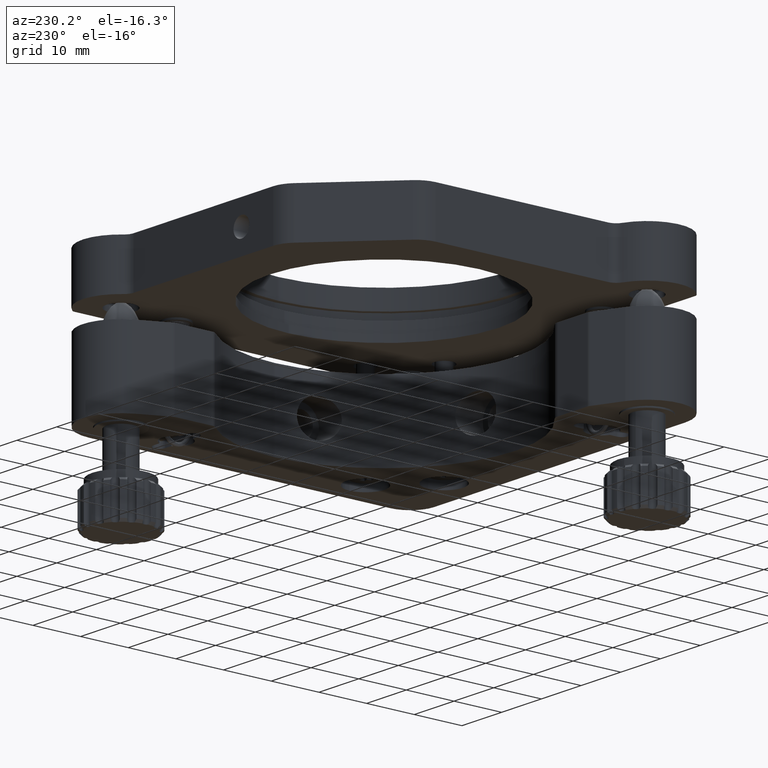
[diagram: clean part render]
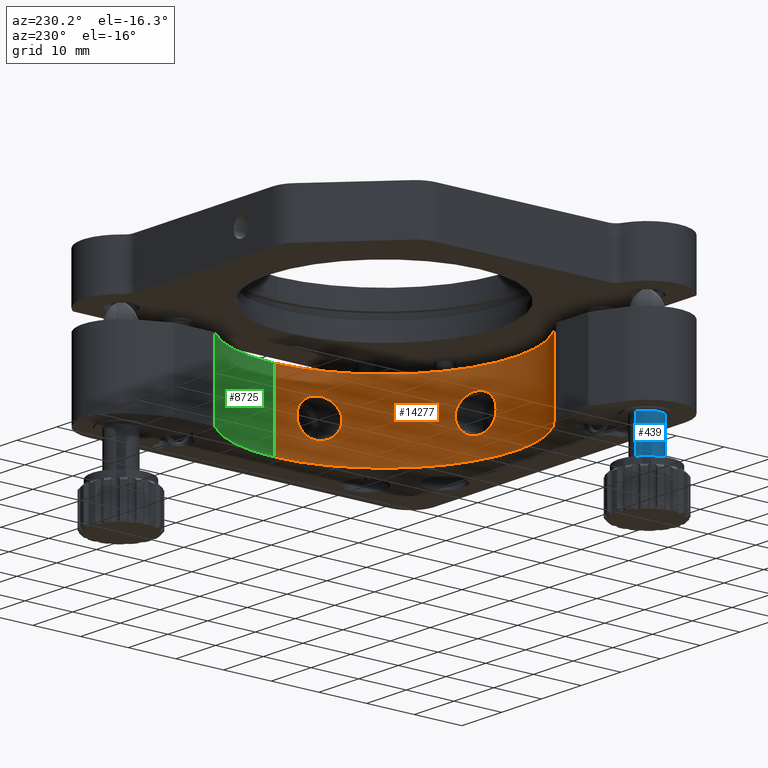
[diagram: same view with three faces highlighted in distinct colors, each labeled with its STEP entity id]
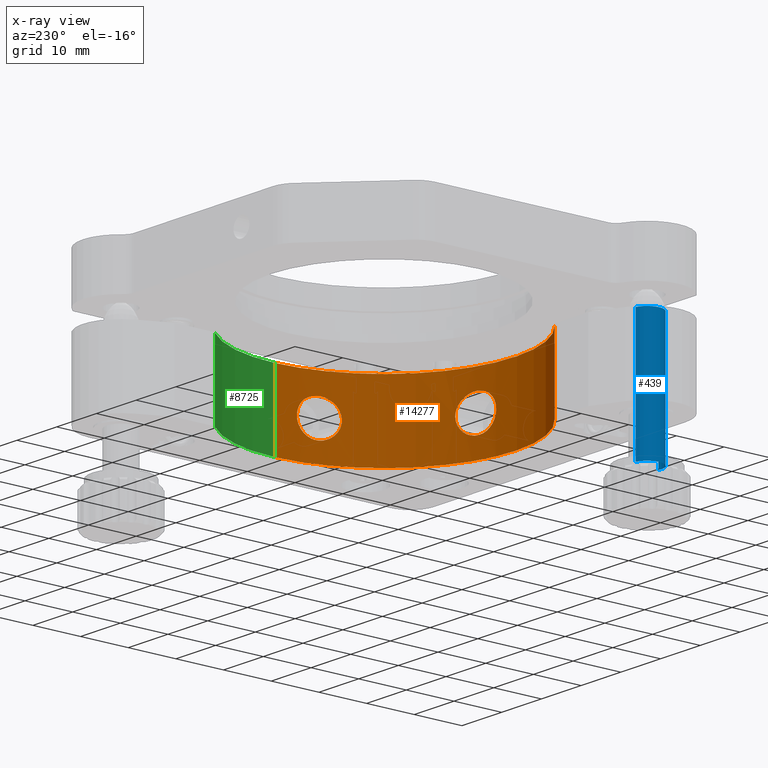
[diagram: x-ray of the same camera — body ghosted, the three highlighted faces saturated]
A machine part, auxiliary view with three faces highlighted in distinct colors.
The next image is the same camera in x-ray (body ghosted, the three faces saturated) — at least one of them is partly hidden behind the body in this view.
Their STEP definitions:

[orange] entity #14277 — the highlighted cylindrical surface (partial cylindrical patch) has radius 27.5 mm, axis along (0, 0, -1).
#127 = LINE ( 'NONE', #24927, #20570 ) ;
#245 = CARTESIAN_POINT ( 'NONE',  ( 11.72447375940483600, 13.75372775150772500, 36.66958947726605100 ) ) ;
#1021 = CARTESIAN_POINT ( 'NONE',  ( 11.61240398519504100, 13.21102739949589200, 37.16722676443497200 ) ) ;
#1133 = FACE_BOUND ( 'NONE', #18307, .T. ) ;
#1168 = AXIS2_PLACEMENT_3D ( 'NONE', #5977, #24690, #8650 ) ;
#1273 = CARTESIAN_POINT ( 'NONE',  ( -3.803981600072138000, -5.945244432638374700, 32.65918891084228900 ) ) ;
#1386 = CARTESIAN_POINT ( 'NONE',  ( -7.588334148211886900, -7.354276907216250200, 30.61669100113672900 ) ) ;
#1504 = CARTESIAN_POINT ( 'NONE',  ( -10.88459030306525800, -8.094655037398293700, 33.84464813031038900 ) ) ;
#1520 = CARTESIAN_POINT ( 'NONE',  ( -10.51350138551632600, -8.032372581302349000, 36.04736450454455400 ) ) ;
#1642 = CARTESIAN_POINT ( 'NONE',  ( -6.624647301913070100, -7.055041831068896500, 38.06918889963161200 ) ) ;
#1749 = CARTESIAN_POINT ( 'NONE',  ( -3.435912668439901300, -5.773112571599144300, 34.85538143289213100 ) ) ;
#2262 = B_SPLINE_CURVE_WITH_KNOTS ( 'NONE', 3,
 ( #9482, #25512, #14779, #33562, #17457, #1520, #20177, #4217, #22903, #6911, #25629, #9586, #28312, #12228, #31005, #14885, #33669, #17572, #1642, #20282, #4328, #23027, #7029, #25752, #9707, #28438, #12347, #31109, #15009, #33783, #17702, #1749, #20395, #4455 ),
 .UNSPECIFIED., .F., .F.,
 ( 4, 2, 2, 2, 2, 2, 2, 2, 2, 2, 2, 2, 2, 2, 2, 2, 4 ),
 ( 0.01202202049357796500, 0.01277320786518087000, 0.01352439523678377300, 0.01427558260838667800, 0.01502676997998958100, 0.01577795735159248600, 0.01652914472319539200, 0.01728033209479829700, 0.01803151946640119800, 0.01878270683800410300, 0.01953389420960700800, 0.02028508158120991300, 0.02103626895281281900, 0.02178745632441572000, 0.02253864369601862900, 0.02328983106762153000, 0.02404101843922443500 ),
 .UNSPECIFIED. ) ;
#2399 = CARTESIAN_POINT ( 'NONE',  ( 11.72573660731141300, 13.76014910145244300, 31.66072629155338400 ) ) ;
#2514 = CARTESIAN_POINT ( 'NONE',  ( 9.799756271762470700, 7.729543251172384700, 32.23317134279396600 ) ) ;
#2623 = CARTESIAN_POINT ( 'NONE',  ( 9.991173499210185900, 8.162414062818765400, 36.67629764958761700 ) ) ;
#2910 = CARTESIAN_POINT ( 'NONE',  ( 11.75527404419028500, 13.91412253825777200, 36.47856283163746100 ) ) ;
#3040 = CARTESIAN_POINT ( 'NONE',  ( 11.86094457971062400, 14.50557341350583900, 35.39353269183853000 ) ) ;
#3201 = CARTESIAN_POINT ( 'NONE',  ( 11.01972925181041200, 10.95503669957007300, 30.41161499869944200 ) ) ;
#3297 = CARTESIAN_POINT ( 'NONE',  ( 11.89353870448541700, 14.70544141034105000, 33.91775071106218300 ) ) ;
#3697 = CARTESIAN_POINT ( 'NONE',  ( 11.29400797949288000, 11.90109943675633500, 37.79828227043167700 ) ) ;
#3812 = CARTESIAN_POINT ( 'NONE',  ( 11.35597531785339600, 12.13571540134381400, 37.72906344125338800 ) ) ;
#3970 = CARTESIAN_POINT ( 'NONE',  ( -4.197515632329259300, -6.122088159024172200, 32.03815217676729100 ) ) ;
#4005 = CARTESIAN_POINT ( 'NONE',  ( 11.51934341006664800, 12.79841115329120900, 37.43654503579153900 ) ) ;
#4091 = CARTESIAN_POINT ( 'NONE',  ( -8.296871075275237900, -7.549778629702295500, 30.76797374120340900 ) ) ;
#4105 = VERTEX_POINT ( 'NONE', #7612 ) ;
#4208 = CARTESIAN_POINT ( 'NONE',  ( -10.91030118957225900, -8.098738360262769800, 34.35000000000002300 ) ) ;
#4217 = CARTESIAN_POINT ( 'NONE',  ( -10.10685648630852500, -7.958161508622769300, 36.68303294071114400 ) ) ;
#4263 = CARTESIAN_POINT ( 'NONE',  ( -33.47623285992027300, -1.546658215684167700, 42.20000000000001700 ) ) ;
#4328 = CARTESIAN_POINT ( 'NONE',  ( -5.927142914095679900, -6.813799025549786700, 37.89939486661355500 ) ) ;
#4455 = CARTESIAN_POINT ( 'NONE',  ( -3.410301189572261500, -5.760835237559196500, 34.35000000000002300 ) ) ;
#5001 = CARTESIAN_POINT ( 'NONE',  ( 10.94421950653771200, 10.71004924223826500, 30.41161499869943800 ) ) ;
#5229 = CARTESIAN_POINT ( 'NONE',  ( 11.86165834996676900, 14.50982663499327400, 32.94159190297495600 ) ) ;
#5237 = CARTESIAN_POINT ( 'NONE',  ( 9.652907997586329000, 7.410565311943852200, 32.91211091470822200 ) ) ;
#5337 = CARTESIAN_POINT ( 'NONE',  ( 10.21712238080075300, 8.701396209242926000, 37.16852925240799300 ) ) ;
#5535 = CARTESIAN_POINT ( 'NONE',  ( 11.01972925181041200, 10.95503669957007300, 30.41161499869944200 ) ) ;
#5672 = CARTESIAN_POINT ( 'NONE',  ( 11.87369919949249000, 14.58307274527599900, 33.18116313643526600 ) ) ;
#5785 = CARTESIAN_POINT ( 'NONE',  ( 11.46984561940345600, 12.58954838058802400, 30.77793811951558600 ) ) ;
#5847 = EDGE_CURVE ( 'NONE', #24687, #33180, #30978, .T. ) ;
#5977 = CARTESIAN_POINT ( 'NONE',  ( -15.26030118957226400, 19.05503669957007400, 42.20000000000001700 ) ) ;
#6602 = AXIS2_PLACEMENT_3D ( 'NONE', #22187, #24944, #16855 ) ;
#6662 = CARTESIAN_POINT ( 'NONE',  ( -4.695760516186863900, -6.335412870437867400, 31.51341167375026200 ) ) ;
#6780 = CARTESIAN_POINT ( 'NONE',  ( -8.976146265655215100, -7.718167099526931800, 31.05976674726511900 ) ) ;
#6821 = CARTESIAN_POINT ( 'NONE',  ( -15.26030118957226400, 19.05503669957007400, 26.40000000000001300 ) ) ;
#6911 = CARTESIAN_POINT ( 'NONE',  ( -9.588101201450964300, -7.854246537737636500, 37.21884963167717300 ) ) ;
#7029 = CARTESIAN_POINT ( 'NONE',  ( -5.280383662552973000, -6.571065059261997900, 37.60354064872112900 ) ) ;
#7406 = EDGE_CURVE ( 'NONE', #16631, #27137, #23154, .T. ) ;
#7612 = CARTESIAN_POINT ( 'NONE',  ( -10.91030118957225900, -8.098738360262769800, 34.35000000000002300 ) ) ;
#7775 = CARTESIAN_POINT ( 'NONE',  ( 10.86650390890866000, 10.47006229524177600, 30.43538350453967900 ) ) ;
#7896 = CARTESIAN_POINT ( 'NONE',  ( 9.568483963468096900, 7.231979425746512600, 33.64632829567295900 ) ) ;
#8016 = CARTESIAN_POINT ( 'NONE',  ( 10.46034216682837200, 9.320829509336286700, 37.54534050057710500 ) ) ;
#8426 = ORIENTED_EDGE ( 'NONE', *, *, #5847, .T. ) ;
#8546 = EDGE_CURVE ( 'NONE', #33180, #31280, #20618, .T. ) ;
#8650 = DIRECTION ( 'NONE',  ( 1.000000000000000000, 0.0000000000000000000, 0.0000000000000000000 ) ) ;
#9122 = CARTESIAN_POINT ( 'NONE',  ( -3.410301189572261500, -5.760835237559196500, 34.35000000000002300 ) ) ;
#9345 = CARTESIAN_POINT ( 'NONE',  ( -5.282498649634758800, -6.571892743360689500, 31.09520358812605400 ) ) ;
#9468 = CARTESIAN_POINT ( 'NONE',  ( -9.584495610804475900, -7.853498286132510700, 31.47790884833033000 ) ) ;
#9482 = CARTESIAN_POINT ( 'NONE',  ( -10.91030118957225900, -8.098738360262769800, 34.35000000000002300 ) ) ;
#9503 = DIRECTION ( 'NONE',  ( 1.000000000000000000, 0.0000000000000000000, 0.0000000000000000000 ) ) ;
#9533 = ORIENTED_EDGE ( 'NONE', *, *, #8546, .T. ) ;
#9586 = CARTESIAN_POINT ( 'NONE',  ( -8.975492461596749300, -7.718016572866978300, 37.64062496048228500 ) ) ;
#9707 = CARTESIAN_POINT ( 'NONE',  ( -4.694204628835114700, -6.334761315163842000, 37.18518135401954800 ) ) ;
#10470 = CARTESIAN_POINT ( 'NONE',  ( 10.62482563897482600, 9.767031868782268600, 30.59658611018073100 ) ) ;
#10578 = CARTESIAN_POINT ( 'NONE',  ( 9.555378303744706900, 7.204633689997925700, 34.40845422026011800 ) ) ;
#10661 = CARTESIAN_POINT ( 'NONE',  ( 11.16768732024313100, 11.43507898876267100, 30.41161499869943800 ) ) ;
#10685 = CARTESIAN_POINT ( 'NONE',  ( 10.70577447990825300, 9.995495485857762900, 37.79478070973728200 ) ) ;
#10780 = CARTESIAN_POINT ( 'NONE',  ( 11.88958530197991300, 14.68055361946742500, 33.66719100786030300 ) ) ;
#11216 = EDGE_CURVE ( 'NONE', #28753, #31280, #127, .T. ) ;
#11910 = ORIENTED_EDGE ( 'NONE', *, *, #7406, .F. ) ;
#11987 = CARTESIAN_POINT ( 'NONE',  ( -5.929894274128071400, -6.814792916137585100, 30.79964430164985200 ) ) ;
#12104 = CARTESIAN_POINT ( 'NONE',  ( -10.10706171999812500, -7.958196702379134500, 32.01737372009112900 ) ) ;
#12228 = CARTESIAN_POINT ( 'NONE',  ( -8.296460718585805700, -7.549685936160670100, 37.93227733946974900 ) ) ;
#12347 = CARTESIAN_POINT ( 'NONE',  ( -4.198928514336397900, -6.122708018317430500, 36.66360396754392100 ) ) ;
#13084 = CARTESIAN_POINT ( 'NONE',  ( 10.37842961275941700, 9.107561249898832800, 30.88946937042000600 ) ) ;
#13197 = CARTESIAN_POINT ( 'NONE',  ( 9.615844566933704500, 7.331959097424777900, 35.16184810204340700 ) ) ;
#13306 = CARTESIAN_POINT ( 'NONE',  ( 10.94518754357597600, 10.71318998826714400, 37.91161499869943400 ) ) ;
#13765 = ORIENTED_EDGE ( 'NONE', *, *, #30686, .F. ) ;
#13856 = CARTESIAN_POINT ( 'NONE',  ( 11.65448911263465700, 13.40914140831975500, 31.31548253670515800 ) ) ;
#14169 = DIRECTION ( 'NONE',  ( 0.0000000000000000000, 0.0000000000000000000, -1.000000000000000000 ) ) ;
#14277 = ADVANCED_FACE ( 'NONE', ( #29596, #1133, #22442 ), #19034, .F. ) ;
#14423 = EDGE_CURVE ( 'NONE', #27238, #4105, #34395, .T. ) ;
#14518 = CARTESIAN_POINT ( 'NONE',  ( -3.435891815567631500, -5.773100173432791100, 33.84641996739124200 ) ) ;
#14633 = CARTESIAN_POINT ( 'NONE',  ( -6.627380265971859300, -7.055944915706196400, 30.63042469955398100 ) ) ;
#14764 = CARTESIAN_POINT ( 'NONE',  ( -10.51248516921498900, -8.032196826310093100, 32.65041530017457900 ) ) ;
#14779 = CARTESIAN_POINT ( 'NONE',  ( -10.88542618452068400, -8.094790224470534300, 34.85027620356378000 ) ) ;
#14885 = CARTESIAN_POINT ( 'NONE',  ( -7.586496744287931200, -7.353744505546990800, 38.08352736354999700 ) ) ;
#15009 = CARTESIAN_POINT ( 'NONE',  ( -3.804181570000149600, -5.945333658411745300, 36.04097460590156700 ) ) ;
#15204 = ORIENTED_EDGE ( 'NONE', *, *, #17897, .F. ) ;
#15310 = CARTESIAN_POINT ( 'NONE',  ( 11.75662857346820000, 13.92128929335893200, 31.85404066536974500 ) ) ;
#15428 = CARTESIAN_POINT ( 'NONE',  ( 11.30138877346915100, 11.91782598134002700, 30.50523325832560700 ) ) ;
#15769 = CARTESIAN_POINT ( 'NONE',  ( 10.13981757688420000, 8.513701361918659700, 31.30478367684669300 ) ) ;
#15881 = CARTESIAN_POINT ( 'NONE',  ( 9.742109369595056000, 7.603348403030256700, 35.86202167918910500 ) ) ;
#16631 = VERTEX_POINT ( 'NONE', #30676 ) ;
#16641 = VECTOR ( 'NONE', #30620, 1000.000000000000000 ) ;
#16855 = DIRECTION ( 'NONE',  ( 1.000000000000000000, 0.0000000000000000000, 0.0000000000000000000 ) ) ;
#16948 = CARTESIAN_POINT ( 'NONE',  ( 12.23969881042774000, 19.05503669957007400, 42.20000000000001700 ) ) ;
#17085 = CARTESIAN_POINT ( 'NONE',  ( -3.410301189572261000, -5.760835237559200900, 34.09572300008578300 ) ) ;
#17206 = CARTESIAN_POINT ( 'NONE',  ( -3.610919589854588300, -5.855869016007214400, 33.11484268788683500 ) ) ;
#17322 = CARTESIAN_POINT ( 'NONE',  ( -7.343784842337957900, -7.282045462162541200, 30.59681185288801300 ) ) ;
#17445 = CARTESIAN_POINT ( 'NONE',  ( -10.78380068680357900, -8.078218734001035600, 33.35202138968532600 ) ) ;
#17457 = CARTESIAN_POINT ( 'NONE',  ( -10.70913804942303200, -8.065928696245501700, 35.58723674271804100 ) ) ;
#17572 = CARTESIAN_POINT ( 'NONE',  ( -6.861504946111075800, -7.132244659785433400, 38.09581513811880900 ) ) ;
#17702 = CARTESIAN_POINT ( 'NONE',  ( -3.537517630273692600, -5.821247302506813000, 35.35095930563164800 ) ) ;
#17897 = EDGE_CURVE ( 'NONE', #27137, #16631, #25787, .T. ) ;
#18307 = EDGE_LOOP ( 'NONE', ( #31676, #18680 ) ) ;
#18455 = CARTESIAN_POINT ( 'NONE',  ( 9.923888498324723500, 8.008323542294711200, 31.82932331702694700 ) ) ;
#18573 = CARTESIAN_POINT ( 'NONE',  ( 9.921844291627085300, 8.003666214215643400, 36.48806534734014700 ) ) ;
#18680 = ORIENTED_EDGE ( 'NONE', *, *, #27970, .F. ) ;
#18855 = CARTESIAN_POINT ( 'NONE',  ( 11.82785857558659100, 14.31254908162941900, 35.85011811210880200 ) ) ;
#18999 = CARTESIAN_POINT ( 'NONE',  ( 11.88941078184465800, 14.67946232027613000, 34.66450686953299300 ) ) ;
#19034 = CYLINDRICAL_SURFACE ( 'NONE', #6602, 27.50000000000000400 ) ;
#19170 = CARTESIAN_POINT ( 'NONE',  ( 11.46827374871909700, 12.58306141253679800, 37.54838722621524700 ) ) ;
#19754 = CARTESIAN_POINT ( 'NONE',  ( 11.16218723768284500, 11.42861820081578000, 37.88936285895749700 ) ) ;
#19925 = CARTESIAN_POINT ( 'NONE',  ( -3.921462633119292100, -5.998976564206335700, 32.44404527303840500 ) ) ;
#20016 = ORIENTED_EDGE ( 'NONE', *, *, #11216, .F. ) ;
#20045 = CARTESIAN_POINT ( 'NONE',  ( -8.063606596707417800, -7.487730872827855300, 30.70241893357864200 ) ) ;
#20166 = CARTESIAN_POINT ( 'NONE',  ( -10.91030118957226200, -8.098738360262775200, 34.09927603661585500 ) ) ;
#20177 = CARTESIAN_POINT ( 'NONE',  ( -10.39094581177926500, -8.010813517067653300, 36.27045987830331300 ) ) ;
#20282 = CARTESIAN_POINT ( 'NONE',  ( -6.158155797841460300, -6.896103317997000400, 37.97146320875140900 ) ) ;
#20395 = CARTESIAN_POINT ( 'NONE',  ( -3.410301189572262400, -5.760835237559201800, 34.60421307019292000 ) ) ;
#20570 = VECTOR ( 'NONE', #14169, 1000.000000000000000 ) ;
#20618 = CIRCLE ( 'NONE', #26404, 27.50000000000000400 ) ;
#20713 = CARTESIAN_POINT ( 'NONE',  ( 11.89340742239832800, 14.70462191608151600, 34.41777118050426800 ) ) ;
#21175 = CARTESIAN_POINT ( 'NONE',  ( 9.743761495506220200, 7.606955849880257900, 32.45430937358364100 ) ) ;
#21299 = CARTESIAN_POINT ( 'NONE',  ( 10.13947726131923600, 8.512861567723916800, 37.01786265101638700 ) ) ;
#21330 = CARTESIAN_POINT ( 'NONE',  ( -33.47623285992027300, -1.546658215684167700, 26.40000000000001300 ) ) ;
#21678 = CARTESIAN_POINT ( 'NONE',  ( 11.01972925181041400, 10.95503669957007300, 37.91161499869944200 ) ) ;
#21874 = CARTESIAN_POINT ( 'NONE',  ( 11.52159151106701400, 12.80807748566540000, 30.89220401125737700 ) ) ;
#21920 = CARTESIAN_POINT ( 'NONE',  ( 12.23969881042774000, 19.05503669957007400, 42.20000000000001700 ) ) ;
#22187 = CARTESIAN_POINT ( 'NONE',  ( -15.26030118957226400, 19.05503669957007400, 42.20000000000001700 ) ) ;
#22442 = FACE_OUTER_BOUND ( 'NONE', #25808, .T. ) ;
#22659 = CARTESIAN_POINT ( 'NONE',  ( -4.354005467935214000, -6.190500780129819500, 31.85102053107494800 ) ) ;
#22773 = CARTESIAN_POINT ( 'NONE',  ( -8.753928554097759800, -7.665230379741340800, 30.94661124071452500 ) ) ;
#22903 = CARTESIAN_POINT ( 'NONE',  ( -9.946125077214519500, -7.927233577368067300, 36.87263678992719200 ) ) ;
#23027 = CARTESIAN_POINT ( 'NONE',  ( -5.489288764262701300, -6.651612661106645100, 37.71550155637760300 ) ) ;
#23154 = B_SPLINE_CURVE_WITH_KNOTS ( 'NONE', 3,
 ( #21678, #29766, #19754, #3697, #3812, #19170, #4005, #1021, #23579, #245, #2910, #32279, #18855, #3040, #33111, #18999, #20713, #3297, #10780, #5672, #5229, #31859, #34340, #15310, #2399, #13856, #29879, #21874, #5785, #15428, #10661, #5535 ),
 .UNSPECIFIED., .F., .F.,
 ( 4, 2, 2, 2, 2, 2, 2, 2, 2, 2, 2, 2, 2, 2, 2, 4 ),
 ( 0.01212766341529378400, 0.01287027685505934800, 0.01361289029482491200, 0.01435550373459047600, 0.01509811717435604100, 0.01584073061412160500, 0.01658334405388716900, 0.01732595749365273300, 0.01806857093341829700, 0.01881118437318386000, 0.01955379781294942400, 0.02029641125271498800, 0.02103902469248055200, 0.02178163813224611600, 0.02252425157201168000, 0.02400947845154280000 ),
 .UNSPECIFIED. ) ;
#23579 = CARTESIAN_POINT ( 'NONE',  ( 11.65327488463974100, 13.40336628213144900, 37.01263057994273700 ) ) ;
#23939 = CARTESIAN_POINT ( 'NONE',  ( 9.617330757021635500, 7.335109899211621700, 33.15027637561960500 ) ) ;
#24053 = CARTESIAN_POINT ( 'NONE',  ( 10.37716237299239600, 9.104285709553808600, 37.43195895029710800 ) ) ;
#24350 = CARTESIAN_POINT ( 'NONE',  ( 12.23969881042774000, 19.05503669957007400, 26.40000000000001300 ) ) ;
#24687 = VERTEX_POINT ( 'NONE', #21920 ) ;
#24690 = DIRECTION ( 'NONE',  ( 0.0000000000000000000, 0.0000000000000000000, -1.000000000000000000 ) ) ;
#24927 = CARTESIAN_POINT ( 'NONE',  ( -33.47623285992027300, -1.546658215684167700, 42.20000000000001700 ) ) ;
#24944 = DIRECTION ( 'NONE',  ( 0.0000000000000000000, 0.0000000000000000000, -1.000000000000000000 ) ) ;
#25201 = CIRCLE ( 'NONE', #1168, 27.50000000000000400 ) ;
#25382 = CARTESIAN_POINT ( 'NONE',  ( -4.883758571540549400, -6.413049594753386100, 31.36048569663421800 ) ) ;
#25496 = CARTESIAN_POINT ( 'NONE',  ( -9.390126877214427700, -7.811970917920702600, 31.32497014883022500 ) ) ;
#25512 = CARTESIAN_POINT ( 'NONE',  ( -10.91030118957226100, -8.098738360262771600, 34.60066092695889500 ) ) ;
#25541 = DIRECTION ( 'NONE',  ( 0.0000000000000000000, 0.0000000000000000000, -1.000000000000000000 ) ) ;
#25629 = CARTESIAN_POINT ( 'NONE',  ( -9.390195162789378700, -7.811988768656156900, 37.37501319877993900 ) ) ;
#25752 = CARTESIAN_POINT ( 'NONE',  ( -4.882568266474195600, -6.412560450082057000, 37.33856979043658700 ) ) ;
#25787 = B_SPLINE_CURVE_WITH_KNOTS ( 'NONE', 3,
 ( #34448, #5001, #7775, #26494, #10470, #29206, #13084, #31868, #15769, #34560, #18455, #2514, #21175, #5237, #23939, #7896, #26591, #10578, #29324, #13197, #31981, #15881, #34671, #18573, #2623, #21299, #5337, #24053, #8016, #26704, #10685, #29429, #13306, #32096 ),
 .UNSPECIFIED., .F., .F.,
 ( 4, 2, 2, 2, 2, 2, 2, 2, 2, 2, 2, 2, 2, 2, 2, 2, 4 ),
 ( 0.0000000000000000000, 0.0007579789634558624800, 0.001515957926911725000, 0.002273936890367587700, 0.003031915853823449900, 0.003789894817279313100, 0.004547873780735173600, 0.005305852744191035000, 0.006063831707646896400, 0.006821810671102757800, 0.007579789634558617400, 0.008337768598014478800, 0.009095747561470340200, 0.009853726524926201600, 0.01061170548838206300, 0.01136968445183792400, 0.01212766341529378400 ),
 .UNSPECIFIED. ) ;
#25808 = EDGE_LOOP ( 'NONE', ( #13765, #8426, #9533, #20016 ) ) ;
#26404 = AXIS2_PLACEMENT_3D ( 'NONE', #6821, #25541, #9503 ) ;
#26494 = CARTESIAN_POINT ( 'NONE',  ( 10.70712546060949000, 9.999404013533640200, 30.52750334792418500 ) ) ;
#26591 = CARTESIAN_POINT ( 'NONE',  ( 9.555767849851122300, 7.205449464780793200, 33.90267889806111900 ) ) ;
#26704 = CARTESIAN_POINT ( 'NONE',  ( 10.62445584595177200, 9.766030428636439000, 37.72623215911789200 ) ) ;
#26893 = EDGE_LOOP ( 'NONE', ( #15204, #11910 ) ) ;
#27137 = VERTEX_POINT ( 'NONE', #3201 ) ;
#27238 = VERTEX_POINT ( 'NONE', #27657 ) ;
#27657 = CARTESIAN_POINT ( 'NONE',  ( -3.410301189572261500, -5.760835237559196500, 34.35000000000002300 ) ) ;
#27970 = EDGE_CURVE ( 'NONE', #4105, #27238, #2262, .T. ) ;
#28067 = CARTESIAN_POINT ( 'NONE',  ( -5.491733129298507900, -6.652543031032986500, 30.98327943086829700 ) ) ;
#28175 = CARTESIAN_POINT ( 'NONE',  ( -9.945967722796433800, -7.927214575085606000, 31.82696846212586900 ) ) ;
#28312 = CARTESIAN_POINT ( 'NONE',  ( -8.756732779296537900, -7.665927702232052000, 37.75220158009150900 ) ) ;
#28438 = CARTESIAN_POINT ( 'NONE',  ( -4.353494985694865700, -6.190276096885216200, 36.84834434995158900 ) ) ;
#28753 = VERTEX_POINT ( 'NONE', #4263 ) ;
#29206 = CARTESIAN_POINT ( 'NONE',  ( 10.45992491004608900, 9.319699311928248500, 30.77835354227474700 ) ) ;
#29324 = CARTESIAN_POINT ( 'NONE',  ( 9.567586140060452500, 7.230097506833650400, 34.66359665434842400 ) ) ;
#29429 = CARTESIAN_POINT ( 'NONE',  ( 10.86602915719345900, 10.46858019599374000, 37.88773529933412500 ) ) ;
#29596 = FACE_BOUND ( 'NONE', #26893, .T. ) ;
#29766 = CARTESIAN_POINT ( 'NONE',  ( 11.09275987274690100, 11.19198076640513600, 37.91161499869942700 ) ) ;
#29879 = CARTESIAN_POINT ( 'NONE',  ( 11.61404845848513800, 13.21863309437785000, 31.16179171704550700 ) ) ;
#30620 = DIRECTION ( 'NONE',  ( 0.0000000000000000000, 0.0000000000000000000, -1.000000000000000000 ) ) ;
#30676 = CARTESIAN_POINT ( 'NONE',  ( 11.01972925181041400, 10.95503669957007300, 37.91161499869944200 ) ) ;
#30686 = EDGE_CURVE ( 'NONE', #24687, #28753, #25201, .T. ) ;
#30756 = CARTESIAN_POINT ( 'NONE',  ( -6.161003729916647100, -6.897101368942466900, 30.72775625977143900 ) ) ;
#30868 = CARTESIAN_POINT ( 'NONE',  ( -10.38969051970639500, -8.010583699038010200, 32.42760890040214200 ) ) ;
#30978 = LINE ( 'NONE', #16948, #16641 ) ;
#31005 = CARTESIAN_POINT ( 'NONE',  ( -8.062056762365143600, -7.487312039198156900, 37.99797287711587000 ) ) ;
#31109 = CARTESIAN_POINT ( 'NONE',  ( -3.923145399913837500, -5.999737159728302200, 36.25874666568130800 ) ) ;
#31280 = VERTEX_POINT ( 'NONE', #21330 ) ;
#31676 = ORIENTED_EDGE ( 'NONE', *, *, #14423, .F. ) ;
#31859 = CARTESIAN_POINT ( 'NONE',  ( 11.82854016028686000, 14.31644005945762600, 32.48055720932279700 ) ) ;
#31868 = CARTESIAN_POINT ( 'NONE',  ( 10.21878559970313200, 8.705499446107223700, 31.15168398701677100 ) ) ;
#31981 = CARTESIAN_POINT ( 'NONE',  ( 9.651256081370275900, 7.407032022939036500, 35.40131662845564600 ) ) ;
#32096 = CARTESIAN_POINT ( 'NONE',  ( 11.01972925181041400, 10.95503669957007300, 37.91161499869944200 ) ) ;
#32279 = CARTESIAN_POINT ( 'NONE',  ( 11.80709715827059400, 14.19435256004202700, 36.06720388861592100 ) ) ;
#33111 = CARTESIAN_POINT ( 'NONE',  ( 11.87328348966699700, 14.58054301489631600, 35.15153943796319400 ) ) ;
#33180 = VERTEX_POINT ( 'NONE', #24350 ) ;
#33321 = CARTESIAN_POINT ( 'NONE',  ( -3.535506039649727800, -5.820296792083180300, 33.35718674690864600 ) ) ;
#33436 = CARTESIAN_POINT ( 'NONE',  ( -6.863891258787682600, -7.133003092367472300, 30.60403835158628300 ) ) ;
#33551 = CARTESIAN_POINT ( 'NONE',  ( -10.70937970985397700, -8.065971591682046700, 33.11316240268620000 ) ) ;
#33562 = CARTESIAN_POINT ( 'NONE',  ( -10.78413219659044500, -8.078273906794446900, 35.34733712475534200 ) ) ;
#33669 = CARTESIAN_POINT ( 'NONE',  ( -7.342737966239999600, -7.281737513263254700, 38.10328217252388300 ) ) ;
#33783 = CARTESIAN_POINT ( 'NONE',  ( -3.612147351060830400, -5.856440714035334900, 35.58836115771507000 ) ) ;
#34340 = CARTESIAN_POINT ( 'NONE',  ( 11.80781997527484100, 14.19842544716396800, 32.26319903111424700 ) ) ;
#34395 = B_SPLINE_CURVE_WITH_KNOTS ( 'NONE', 3,
 ( #9122, #17085, #14518, #33321, #17206, #1273, #19925, #3970, #22659, #6662, #25382, #9345, #28067, #11987, #30756, #14633, #33436, #17322, #1386, #20045, #4091, #22773, #6780, #25496, #9468, #28175, #12104, #30868, #14764, #33551, #17445, #1504, #20166, #4208 ),
 .UNSPECIFIED., .F., .F.,
 ( 4, 2, 2, 2, 2, 2, 2, 2, 2, 2, 2, 2, 2, 2, 2, 2, 4 ),
 ( 0.0000000000000000000, 0.0007513762808486233300, 0.001502752561697246700, 0.002254128842545869700, 0.003005505123394493300, 0.003756881404243116500, 0.004508257685091739300, 0.005259633965940363000, 0.006011010246788986600, 0.006762386527637609400, 0.007513762808486235600, 0.008265139089334861900, 0.009016515370183482100, 0.009767891651032102300, 0.01051926793188072200, 0.01127064421272934400, 0.01202202049357796500 ),
 .UNSPECIFIED. ) ;
#34448 = CARTESIAN_POINT ( 'NONE',  ( 11.01972925181041200, 10.95503669957007300, 30.41161499869944200 ) ) ;
#34560 = CARTESIAN_POINT ( 'NONE',  ( 9.992397532991535800, 8.165271262319516100, 31.64391520771825500 ) ) ;
#34671 = CARTESIAN_POINT ( 'NONE',  ( 9.797771732827683900, 7.725154879509531700, 36.08276631885986800 ) ) ;

[blue] entity #439 — the highlighted cylindrical surface (edge-blend (fillet) strip) has radius 3 mm, axis along (-0, -0, -1).
#439 = ADVANCED_FACE ( 'NONE', ( #7404 ), #17341, .T. ) ;
#2683 = EDGE_CURVE ( 'NONE', #21797, #22487, #3343, .T. ) ;
#3343 = CIRCLE ( 'NONE', #4146, 2.999999999999992500 ) ;
#4146 = AXIS2_PLACEMENT_3D ( 'NONE', #32273, #32399, #16287 ) ;
#4592 = CARTESIAN_POINT ( 'NONE',  ( -44.70703756569423600, -13.97297399674197000, 17.60000000000001900 ) ) ;
#5298 = VERTEX_POINT ( 'NONE', #21237 ) ;
#7110 = VECTOR ( 'NONE', #18768, 1000.000000000000000 ) ;
#7404 = FACE_OUTER_BOUND ( 'NONE', #9199, .T. ) ;
#9199 = EDGE_LOOP ( 'NONE', ( #24332, #21545, #25809, #28286 ) ) ;
#9988 = CARTESIAN_POINT ( 'NONE',  ( -46.01356481345028700, -8.116952604117891200, 43.60000000000002300 ) ) ;
#10561 = CARTESIAN_POINT ( 'NONE',  ( -44.70703756569423600, -13.97297399674197000, 8.600000000000017400 ) ) ;
#10602 = DIRECTION ( 'NONE',  ( -6.938893903907223800E-018, -5.551115123125781500E-017, -1.000000000000000000 ) ) ;
#10832 = VERTEX_POINT ( 'NONE', #4592 ) ;
#11169 = DIRECTION ( 'NONE',  ( -6.938893903907223800E-018, -5.551115123125781500E-017, -1.000000000000000000 ) ) ;
#11584 = EDGE_CURVE ( 'NONE', #10832, #5298, #28536, .T. ) ;
#12678 = EDGE_CURVE ( 'NONE', #21797, #10832, #28470, .T. ) ;
#14101 = LINE ( 'NONE', #27220, #20390 ) ;
#16287 = DIRECTION ( 'NONE',  ( -0.2177545412926761300, 0.9760035654373482300, 0.0000000000000000000 ) ) ;
#17341 = CYLINDRICAL_SURFACE ( 'NONE', #19689, 2.999999999999994200 ) ;
#18186 = CARTESIAN_POINT ( 'NONE',  ( -44.70703756569422900, -13.97297399674196500, 43.60000000000002300 ) ) ;
#18768 = DIRECTION ( 'NONE',  ( -6.938893903907223800E-018, -5.551115123125781500E-017, -1.000000000000000000 ) ) ;
#19027 = AXIS2_PLACEMENT_3D ( 'NONE', #26613, #10602, #29340 ) ;
#19689 = AXIS2_PLACEMENT_3D ( 'NONE', #23280, #27899, #21198 ) ;
#20390 = VECTOR ( 'NONE', #11169, 1000.000000000000000 ) ;
#21198 = DIRECTION ( 'NONE',  ( -0.2177545412926759900, 0.9760035654373482300, 0.0000000000000000000 ) ) ;
#21237 = CARTESIAN_POINT ( 'NONE',  ( -46.01356481345028700, -8.116952604117891200, 17.60000000000001900 ) ) ;
#21545 = ORIENTED_EDGE ( 'NONE', *, *, #2683, .T. ) ;
#21797 = VERTEX_POINT ( 'NONE', #18186 ) ;
#22487 = VERTEX_POINT ( 'NONE', #9988 ) ;
#23280 = CARTESIAN_POINT ( 'NONE',  ( -45.36030118957226200, -11.04496330042993100, 8.600000000000017400 ) ) ;
#24332 = ORIENTED_EDGE ( 'NONE', *, *, #12678, .F. ) ;
#25809 = ORIENTED_EDGE ( 'NONE', *, *, #29767, .T. ) ;
#26613 = CARTESIAN_POINT ( 'NONE',  ( -45.36030118957226200, -11.04496330042993100, 17.60000000000001900 ) ) ;
#27220 = CARTESIAN_POINT ( 'NONE',  ( -46.01356481345028700, -8.116952604117891200, 8.600000000000017400 ) ) ;
#27899 = DIRECTION ( 'NONE',  ( -6.938893903907223800E-018, -5.551115123125781500E-017, -1.000000000000000000 ) ) ;
#28286 = ORIENTED_EDGE ( 'NONE', *, *, #11584, .F. ) ;
#28470 = LINE ( 'NONE', #10561, #7110 ) ;
#28536 = CIRCLE ( 'NONE', #19027, 2.999999999999994200 ) ;
#29340 = DIRECTION ( 'NONE',  ( -0.2177545412926759900, 0.9760035654373482300, 0.0000000000000000000 ) ) ;
#29767 = EDGE_CURVE ( 'NONE', #22487, #5298, #14101, .T. ) ;
#32273 = CARTESIAN_POINT ( 'NONE',  ( -45.36030118957226200, -11.04496330042992900, 43.60000000000002300 ) ) ;
#32399 = DIRECTION ( 'NONE',  ( -6.938893903907223800E-018, -5.551115123125781500E-017, -1.000000000000000000 ) ) ;

[green] entity #8725 — the highlighted cylindrical surface (partial cylindrical patch) has radius 27.5 mm, axis along (0, 0, -1).
#75 = DIRECTION ( 'NONE',  ( 0.0000000000000000000, 0.0000000000000000000, -1.000000000000000000 ) ) ;
#181 = ORIENTED_EDGE ( 'NONE', *, *, #29607, .T. ) ;
#2250 = AXIS2_PLACEMENT_3D ( 'NONE', #10300, #31595, #29043 ) ;
#2935 = CARTESIAN_POINT ( 'NONE',  ( 5.099347933234757800, 37.54110409088354300, 42.20000000000001700 ) ) ;
#3394 = DIRECTION ( 'NONE',  ( 0.0000000000000000000, 0.0000000000000000000, -1.000000000000000000 ) ) ;
#5847 = EDGE_CURVE ( 'NONE', #24687, #33180, #30978, .T. ) ;
#7948 = CARTESIAN_POINT ( 'NONE',  ( -15.26030118957226400, 19.05503669957007400, 26.40000000000001300 ) ) ;
#8725 = ADVANCED_FACE ( 'NONE', ( #11410 ), #15125, .F. ) ;
#9187 = CIRCLE ( 'NONE', #27176, 27.50000000000000400 ) ;
#9834 = ORIENTED_EDGE ( 'NONE', *, *, #11595, .F. ) ;
#10300 = CARTESIAN_POINT ( 'NONE',  ( -15.26030118957226400, 19.05503669957007400, 42.20000000000001700 ) ) ;
#10631 = DIRECTION ( 'NONE',  ( 1.000000000000000000, 0.0000000000000000000, 0.0000000000000000000 ) ) ;
#11410 = FACE_OUTER_BOUND ( 'NONE', #19384, .T. ) ;
#11571 = VECTOR ( 'NONE', #3394, 1000.000000000000000 ) ;
#11595 = EDGE_CURVE ( 'NONE', #32363, #24687, #33103, .T. ) ;
#12144 = CARTESIAN_POINT ( 'NONE',  ( 5.099347933234757800, 37.54110409088354300, 26.40000000000001300 ) ) ;
#12900 = ORIENTED_EDGE ( 'NONE', *, *, #5847, .F. ) ;
#14248 = EDGE_CURVE ( 'NONE', #32363, #16616, #32102, .T. ) ;
#15125 = CYLINDRICAL_SURFACE ( 'NONE', #2250, 27.50000000000000400 ) ;
#15999 = CARTESIAN_POINT ( 'NONE',  ( -15.26030118957226400, 19.05503669957007400, 42.20000000000001700 ) ) ;
#16238 = ORIENTED_EDGE ( 'NONE', *, *, #14248, .T. ) ;
#16616 = VERTEX_POINT ( 'NONE', #12144 ) ;
#16641 = VECTOR ( 'NONE', #30620, 1000.000000000000000 ) ;
#16948 = CARTESIAN_POINT ( 'NONE',  ( 12.23969881042774000, 19.05503669957007400, 42.20000000000001700 ) ) ;
#18699 = DIRECTION ( 'NONE',  ( 1.000000000000000000, 0.0000000000000000000, 0.0000000000000000000 ) ) ;
#19336 = CARTESIAN_POINT ( 'NONE',  ( 5.099347933234757800, 37.54110409088354300, 42.20000000000001700 ) ) ;
#19384 = EDGE_LOOP ( 'NONE', ( #12900, #9834, #16238, #181 ) ) ;
#21920 = CARTESIAN_POINT ( 'NONE',  ( 12.23969881042774000, 19.05503669957007400, 42.20000000000001700 ) ) ;
#24350 = CARTESIAN_POINT ( 'NONE',  ( 12.23969881042774000, 19.05503669957007400, 26.40000000000001300 ) ) ;
#24687 = VERTEX_POINT ( 'NONE', #21920 ) ;
#26638 = DIRECTION ( 'NONE',  ( 0.0000000000000000000, 0.0000000000000000000, -1.000000000000000000 ) ) ;
#27176 = AXIS2_PLACEMENT_3D ( 'NONE', #7948, #26638, #10631 ) ;
#29043 = DIRECTION ( 'NONE',  ( 1.000000000000000000, 0.0000000000000000000, 0.0000000000000000000 ) ) ;
#29607 = EDGE_CURVE ( 'NONE', #16616, #33180, #9187, .T. ) ;
#30620 = DIRECTION ( 'NONE',  ( 0.0000000000000000000, 0.0000000000000000000, -1.000000000000000000 ) ) ;
#30978 = LINE ( 'NONE', #16948, #16641 ) ;
#31595 = DIRECTION ( 'NONE',  ( 0.0000000000000000000, 0.0000000000000000000, -1.000000000000000000 ) ) ;
#31655 = AXIS2_PLACEMENT_3D ( 'NONE', #15999, #75, #18699 ) ;
#32102 = LINE ( 'NONE', #19336, #11571 ) ;
#32363 = VERTEX_POINT ( 'NONE', #2935 ) ;
#33103 = CIRCLE ( 'NONE', #31655, 27.50000000000000400 ) ;
#33180 = VERTEX_POINT ( 'NONE', #24350 ) ;